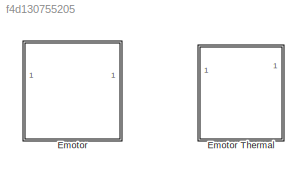
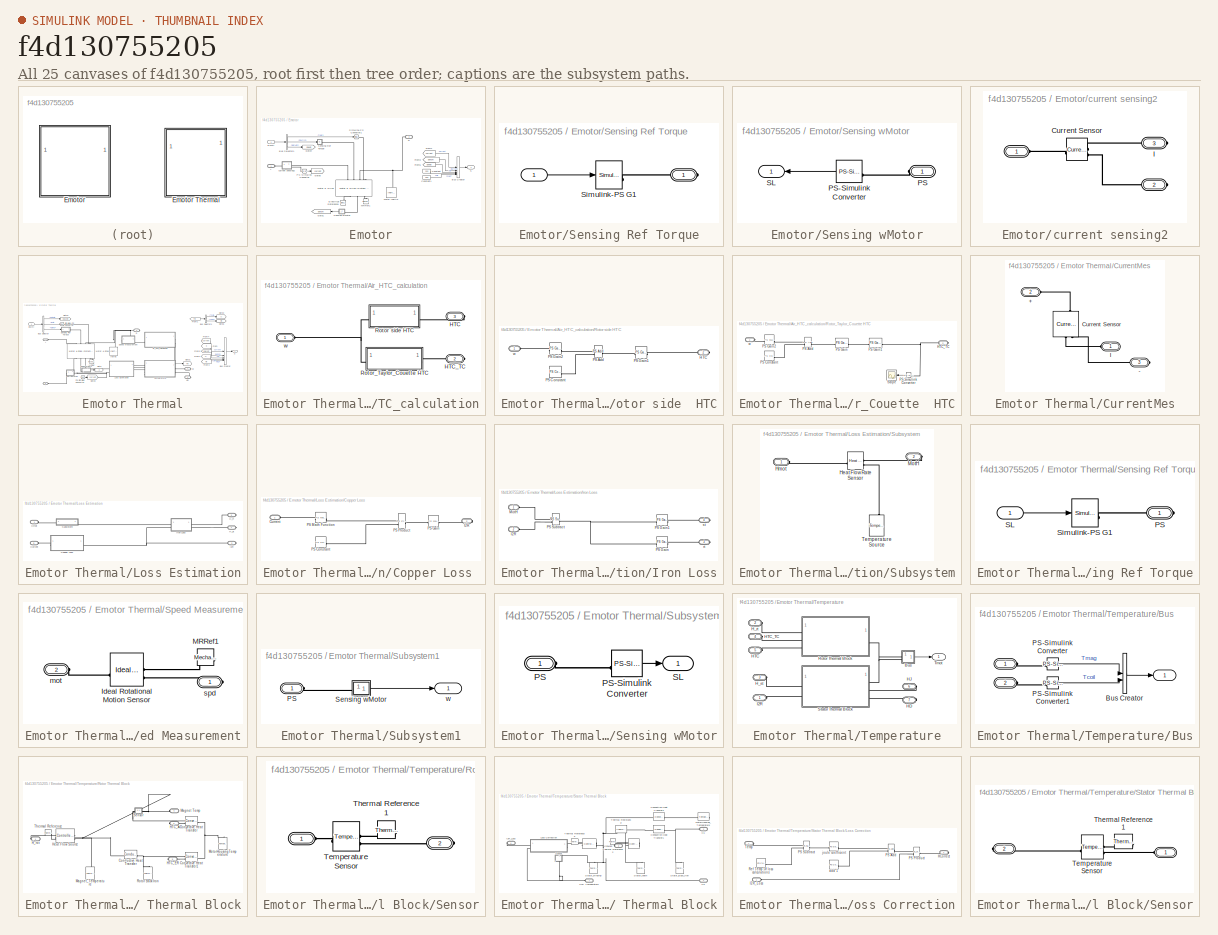
[diagram: thumbnail index - all 25 canvases of the model, root first then tree order]
MODEL slx_f4d130755205
KIND library
CONFIG AbsTol = auto
CONFIG EnableMultiTasking = off
CONFIG FixedStep = auto
CONFIG MaxStep = auto
CONFIG MinStep = auto
CONFIG RelTol = 1e-3
CONFIG SampleTimeConstraint = Unconstrained
CONFIG SolverName = VariableStepAuto
CONFIG StartTime = 0.0
CONFIG StopTime = 10.0
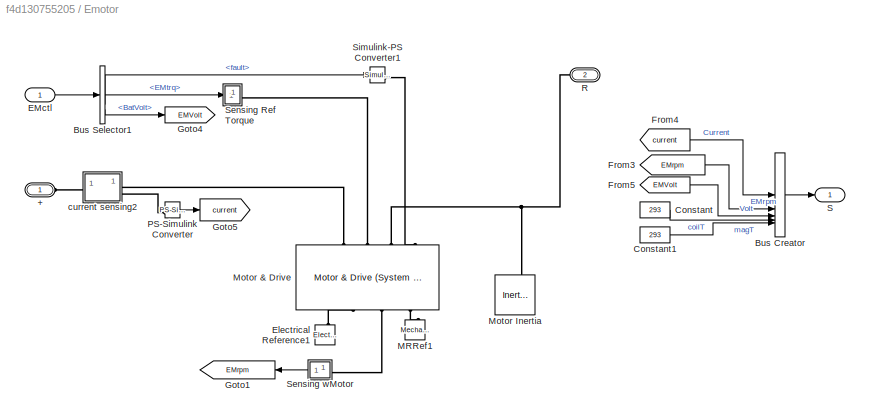
BLOCK [SubSystem] Emotor
  PortSchema = {"entries":[{"content":{"sides":[{"content":{"connectorIds":["LConn1","In1"]},"type":"ConnectorPlacement.EquallySpacedRectSide","uuid":"4c01f4e7-db0d-4a8e-9bf8-0007797f2983"},{"content":{"connectorIds":["RConn1","Out1"],"side":"RIGHT"},"type":"ConnectorPlacement.EquallySpacedRectSide","uuid":"016ff73d-d921-4c23-b0f0-ceb092773eb0"},{"content":{"connectorIds":[],"side":"TOP"},"type":"ConnectorPlacem...<+258ch>
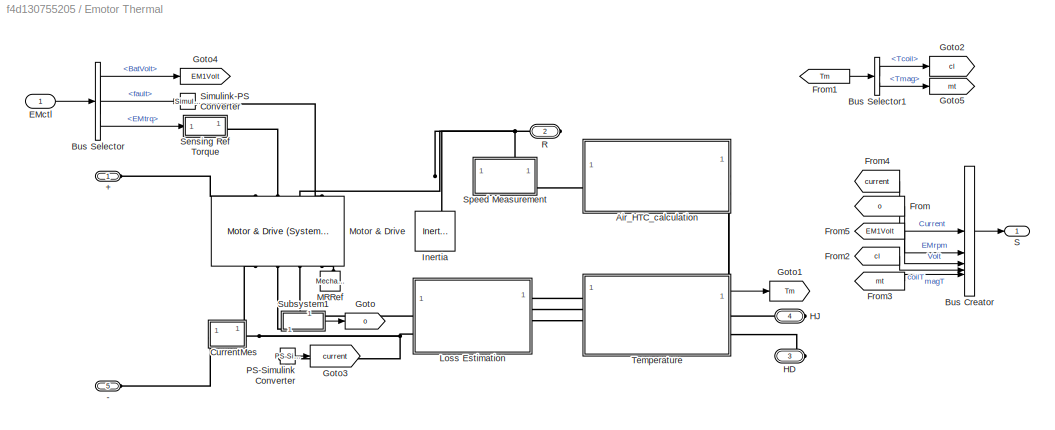
BLOCK [SubSystem] Emotor Thermal
  NameLocation = top
  PortSchema = {"entries":[{"content":{"sides":[{"content":{"connectorIds":["LConn1","LConn2","In1"]},"type":"ConnectorPlacement.EquallySpacedRectSide","uuid":"10df522d-563d-4b08-8533-b994fdc6485c"},{"content":{"connectorIds":["RConn1","Out1"],"side":"RIGHT"},"type":"ConnectorPlacement.EquallySpacedRectSide","uuid":"49c7f672-865f-471b-9e0c-89a8670e12b9"},{"content":{"connectorIds":[],"side":"TOP"},"type":"Connec...<+428ch>
BLOCK [PMIOPort] Emotor Thermal/+
  Side = Left
BLOCK [PMIOPort] Emotor Thermal/-
  Port = 5
  Side = Left
BLOCK [SubSystem] Emotor Thermal/Air_HTC_calculation
  NameLocation = top
  PortSchema = {"entries":[{"content":{"sides":[{"content":{"connectorIds":["LConn1"]},"type":"ConnectorPlacement.EquallySpacedRectSide","uuid":"c3fc49c2-0151-484f-b0d8-f4e4a060bcaf"},{"content":{"connectorIds":[],"side":"RIGHT"},"type":"ConnectorPlacement.EquallySpacedRectSide","uuid":"c73251fe-fcad-4c5f-9d27-fb7ac98c9b31"},{"content":{"connectorIds":[],"side":"TOP"},"type":"ConnectorPlacement.EquallySpacedRect...<+398ch>
BLOCK [PMIOPort] Emotor Thermal/Air_HTC_calculation/HTC
  NameLocation = top
  Port = 3
  Side = Right
BLOCK [PMIOPort] Emotor Thermal/Air_HTC_calculation/HTC_TC
  NameLocation = top
  Port = 2
  Side = Right
BLOCK [SubSystem] Emotor Thermal/Air_HTC_calculation/Rotor side  HTC
BLOCK [PMIOPort] Emotor Thermal/Air_HTC_calculation/Rotor side  HTC/HTC
  NameLocation = top
  Port = 2
  Side = Right
BLOCK [Reference] Emotor Thermal/Air_HTC_calculation/Rotor side  HTC/PS Add  REF=fl_lib/Physical Signals/Functions/PS Add
  SourceBlock = fl_lib/Physical Signals/Functions/PS Add
  SourceType = PS Add
BLOCK [Reference] Emotor Thermal/Air_HTC_calculation/Rotor side  HTC/PS Constant  REF=fl_lib/Physical Signals/Sources/PS Constant
  SourceBlock = fl_lib/Physical Signals/Sources/PS Constant
  SourceType = PS Constant
BLOCK [Reference] Emotor Thermal/Air_HTC_calculation/Rotor side  HTC/PS Gain1  REF=fl_lib/Physical Signals/Functions/PS Gain
  SourceBlock = fl_lib/Physical Signals/Functions/PS Gain
  SourceType = PS Gain
BLOCK [Reference] Emotor Thermal/Air_HTC_calculation/Rotor side  HTC/PS Gain2  REF=fl_lib/Physical Signals/Functions/PS Gain
  SourceBlock = fl_lib/Physical Signals/Functions/PS Gain
  SourceType = PS Gain
BLOCK [PMIOPort] Emotor Thermal/Air_HTC_calculation/Rotor side  HTC/w
  Side = Left
BLOCK [SubSystem] Emotor Thermal/Air_HTC_calculation/Rotor_Taylor_Couette  HTC
BLOCK [PMIOPort] Emotor Thermal/Air_HTC_calculation/Rotor_Taylor_Couette  HTC/HTC_TC
  NameLocation = top
  Port = 2
  Side = Right
BLOCK [Reference] Emotor Thermal/Air_HTC_calculation/Rotor_Taylor_Couette  HTC/PS Add  REF=fl_lib/Physical Signals/Functions/PS Add
  SourceBlock = fl_lib/Physical Signals/Functions/PS Add
  SourceType = PS Add
BLOCK [Reference] Emotor Thermal/Air_HTC_calculation/Rotor_Taylor_Couette  HTC/PS Constant  REF=fl_lib/Physical Signals/Sources/PS Constant
  SourceBlock = fl_lib/Physical Signals/Sources/PS Constant
  SourceType = PS Constant
BLOCK [Reference] Emotor Thermal/Air_HTC_calculation/Rotor_Taylor_Couette  HTC/PS Gain  REF=fl_lib/Physical Signals/Functions/PS Gain
  SourceBlock = fl_lib/Physical Signals/Functions/PS Gain
  SourceType = PS Gain
BLOCK [Reference] Emotor Thermal/Air_HTC_calculation/Rotor_Taylor_Couette  HTC/PS Gain1  REF=fl_lib/Physical Signals/Functions/PS Gain
  SourceBlock = fl_lib/Physical Signals/Functions/PS Gain
  SourceType = PS Gain
BLOCK [Reference] Emotor Thermal/Air_HTC_calculation/Rotor_Taylor_Couette  HTC/PS Gain2  REF=fl_lib/Physical Signals/Functions/PS Gain
  SourceBlock = fl_lib/Physical Signals/Functions/PS Gain
  SourceType = PS Gain
BLOCK [Reference] Emotor Thermal/Air_HTC_calculation/Rotor_Taylor_Couette  HTC/PS-Simulink Converter  REF=nesl_utility/PS-Simulink
Converter
  NameLocation = top
  SourceBlock = nesl_utility/PS-Simulink\nConverter
  SourceType = PS-Simulink\nConverter
BLOCK [Scope] Emotor Thermal/Air_HTC_calculation/Rotor_Taylor_Couette  HTC/Scope
  Floating = off
  NumInputPorts = 1
  ScopeSpecificationString = Simulink.scopes.TimeScopeBlockCfg('CurrentConfiguration', extmgr.ConfigurationSet(extmgr.Configuration('Core','General UI',true),extmgr.Configuration('Core','Source UI',true),extmgr.Configuration('Sources','WiredSimulink',true,'DataLoggingVariableName','ScopeData1'),extmgr.Configuration('Visuals','Time Domain',true,'SerializedDisplays',{struct('MinYLimReal','0.000015','MaxYLimReal','0.000081','YLa...<+1411ch>
BLOCK [PMIOPort] Emotor Thermal/Air_HTC_calculation/Rotor_Taylor_Couette  HTC/w
  Side = Left
BLOCK [PMIOPort] Emotor Thermal/Air_HTC_calculation/w
  Side = Left
BLOCK [BusCreator] Emotor Thermal/Bus Creator
  DisplayOption = bar
  InheritFromInputs = on
  Inputs = 5
BLOCK [BusSelector] Emotor Thermal/Bus Selector
  OutputSignals = BatVolt,fault,EMtrq
BLOCK [BusSelector] Emotor Thermal/Bus Selector1
  OutputSignals = Tcoil,Tmag
BLOCK [SubSystem] Emotor Thermal/CurrentMes
  NameLocation = left
  PortSchema = {"entries":[{"content":{"sides":[{"content":{"connectorIds":["LConn1"]},"type":"ConnectorPlacement.EquallySpacedRectSide","uuid":"aec73178-3b68-40df-935a-7f5359bce9cd"},{"content":{"connectorIds":[],"side":"RIGHT"},"type":"ConnectorPlacement.EquallySpacedRectSide","uuid":"aa898e43-8a60-4280-99e9-69a0b0908b52"},{"content":{"connectorIds":["LConn2"],"side":"TOP"},"type":"ConnectorPlacement.EquallySp...<+397ch>
BLOCK [PMIOPort] Emotor Thermal/CurrentMes/+
  Port = 2
  Side = Left
BLOCK [PMIOPort] Emotor Thermal/CurrentMes/-
  Port = 3
  Side = Right
BLOCK [Reference] Emotor Thermal/CurrentMes/Current Sensor  REF=fl_lib/Electrical/Electrical Sensors/Current Sensor
  NameLocation = left
  SourceBlock = fl_lib/Electrical/Electrical Sensors/Current Sensor
  SourceType = Current Sensor
BLOCK [PMIOPort] Emotor Thermal/CurrentMes/I
  Side = Left
BLOCK [Inport] Emotor Thermal/EMctl
BLOCK [From] Emotor Thermal/From
  GotoTag = o
BLOCK [From] Emotor Thermal/From1
  GotoTag = Tm
BLOCK [From] Emotor Thermal/From2
  GotoTag = cl
  NameLocation = top
BLOCK [From] Emotor Thermal/From3
  GotoTag = mt
BLOCK [From] Emotor Thermal/From4
  GotoTag = current
  NameLocation = left
BLOCK [From] Emotor Thermal/From5
  GotoTag = EM1Volt
BLOCK [Goto] Emotor Thermal/Goto
  GotoTag = o
BLOCK [Goto] Emotor Thermal/Goto1
  GotoTag = Tm
BLOCK [Goto] Emotor Thermal/Goto2
  GotoTag = cl
BLOCK [Goto] Emotor Thermal/Goto3
  GotoTag = current
BLOCK [Goto] Emotor Thermal/Goto4
  GotoTag = EM1Volt
BLOCK [Goto] Emotor Thermal/Goto5
  GotoTag = mt
BLOCK [PMIOPort] Emotor Thermal/HD
  Port = 3
  Side = Right
BLOCK [PMIOPort] Emotor Thermal/HJ
  Port = 4
  Side = Right
BLOCK [Reference] Emotor Thermal/Inertia  REF=fl_lib/Mechanical/Rotational Elements/Inertia
  NameLocation = right
  SourceBlock = fl_lib/Mechanical/Rotational Elements/Inertia
  SourceType = Inertia
BLOCK [SubSystem] Emotor Thermal/Loss Estimation
  NameLocation = top
BLOCK [SubSystem] Emotor Thermal/Loss Estimation/Copper Loss 
BLOCK [PMIOPort] Emotor Thermal/Loss Estimation/Copper Loss /Current
  Side = Left
BLOCK [PMIOPort] Emotor Thermal/Loss Estimation/Copper Loss /I2R
  NameLocation = top
  Port = 2
  Side = Right
BLOCK [Reference] Emotor Thermal/Loss Estimation/Copper Loss /PS Constant  REF=fl_lib/Physical Signals/Sources/PS Constant
  SourceBlock = fl_lib/Physical Signals/Sources/PS Constant
  SourceType = PS Constant
BLOCK [Reference] Emotor Thermal/Loss Estimation/Copper Loss /PS Gain  REF=fl_lib/Physical Signals/Functions/PS Gain
  SourceBlock = fl_lib/Physical Signals/Functions/PS Gain
  SourceType = PS Gain
BLOCK [Reference] Emotor Thermal/Loss Estimation/Copper Loss /PS Math Function  REF=fl_lib/Physical Signals/Functions/PS Math Function
  SourceBlock = fl_lib/Physical Signals/Functions/PS Math Function
  SourceType = PS Math Function
BLOCK [Reference] Emotor Thermal/Loss Estimation/Copper Loss /PS Product  REF=fl_lib/Physical Signals/Functions/PS Product
  SourceBlock = fl_lib/Physical Signals/Functions/PS Product
  SourceType = PS Product
BLOCK [PMIOPort] Emotor Thermal/Loss Estimation/Current
  Port = 5
  Side = Left
BLOCK [PMIOPort] Emotor Thermal/Loss Estimation/H_rt
  Port = 3
  Side = Right
BLOCK [PMIOPort] Emotor Thermal/Loss Estimation/H_st
  Port = 4
  Side = Right
BLOCK [PMIOPort] Emotor Thermal/Loss Estimation/Hmot
  Side = Left
BLOCK [PMIOPort] Emotor Thermal/Loss Estimation/I2R
  NameLocation = top
  Port = 2
  Side = Right
BLOCK [SubSystem] Emotor Thermal/Loss Estimation/Iron Loss
BLOCK [PMIOPort] Emotor Thermal/Loss Estimation/Iron Loss/I2R
  Port = 2
  Side = Left
BLOCK [PMIOPort] Emotor Thermal/Loss Estimation/Iron Loss/MotH
  Side = Left
BLOCK [Reference] Emotor Thermal/Loss Estimation/Iron Loss/PS Gain  REF=fl_lib/Physical Signals/Functions/PS Gain
  SourceBlock = fl_lib/Physical Signals/Functions/PS Gain
  SourceType = PS Gain
BLOCK [Reference] Emotor Thermal/Loss Estimation/Iron Loss/PS Gain1  REF=fl_lib/Physical Signals/Functions/PS Gain
  SourceBlock = fl_lib/Physical Signals/Functions/PS Gain
  SourceType = PS Gain
BLOCK [Reference] Emotor Thermal/Loss Estimation/Iron Loss/PS Subtract  REF=fl_lib/Physical Signals/Functions/PS Subtract
  SourceBlock = fl_lib/Physical Signals/Functions/PS Subtract
  SourceType = PS Subtract
BLOCK [PMIOPort] Emotor Thermal/Loss Estimation/Iron Loss/rt
  NameLocation = top
  Port = 3
  Side = Right
BLOCK [PMIOPort] Emotor Thermal/Loss Estimation/Iron Loss/st
  NameLocation = top
  Port = 4
  Side = Right
BLOCK [SubSystem] Emotor Thermal/Loss Estimation/Subsystem
BLOCK [Reference] Emotor Thermal/Loss Estimation/Subsystem/Heat Flow Rate Sensor  REF=fl_lib/Thermal/Thermal Sensors/Heat Flow Rate
Sensor
  SourceBlock = fl_lib/Thermal/Thermal Sensors/Heat Flow Rate\nSensor
  SourceType = Heat Flow Rate\nSensor
BLOCK [PMIOPort] Emotor Thermal/Loss Estimation/Subsystem/Hmot
  Side = Left
BLOCK [PMIOPort] Emotor Thermal/Loss Estimation/Subsystem/MotH
  NameLocation = top
  Port = 2
  Side = Right
BLOCK [Reference] Emotor Thermal/Loss Estimation/Subsystem/Temperature Source  REF=fl_lib/Thermal/Thermal Sources/Temperature Source
  NameLocation = right
  SourceBlock = fl_lib/Thermal/Thermal Sources/Temperature Source
  SourceType = Temperature Source
BLOCK [Reference] Emotor Thermal/MRRef  REF=fl_lib/Mechanical/Rotational Elements/Mechanical
Rotational Reference
  NameLocation = right
  SourceBlock = fl_lib/Mechanical/Rotational Elements/Mechanical\nRotational Reference
  SourceType = Mechanical\nRotational Reference
BLOCK [Reference] Emotor Thermal/Motor & Drive  REF=ee_lib/Electromechanical/Motor & Drive
(System Level)
  NameLocation = left
  SourceBlock = ee_lib/Electromechanical/Motor & Drive\n(System Level)
  SourceType = Motor & Drive\n(System Level)
BLOCK [Reference] Emotor Thermal/PS-Simulink Converter  REF=nesl_utility/PS-Simulink
Converter
  SourceBlock = nesl_utility/PS-Simulink\nConverter
  SourceType = PS-Simulink\nConverter
BLOCK [PMIOPort] Emotor Thermal/R
  Port = 2
  Side = Right
BLOCK [Outport] Emotor Thermal/S
BLOCK [SubSystem] Emotor Thermal/Sensing Ref Torque
  NameLocation = top
BLOCK [PMIOPort] Emotor Thermal/Sensing Ref Torque/PS
  Side = Right
BLOCK [Inport] Emotor Thermal/Sensing Ref Torque/SL
BLOCK [Reference] Emotor Thermal/Sensing Ref Torque/Simulink-PS G1  REF=nesl_utility/Simulink-PS
Converter
  SourceBlock = nesl_utility/Simulink-PS\nConverter
  SourceType = Simulink-PS\nConverter
BLOCK [Reference] Emotor Thermal/Simulink-PS Converter  REF=nesl_utility/Simulink-PS
Converter
  SourceBlock = nesl_utility/Simulink-PS\nConverter
  SourceType = Simulink-PS\nConverter
BLOCK [SubSystem] Emotor Thermal/Speed Measurement
BLOCK [Reference] Emotor Thermal/Speed Measurement/Ideal Rotational Motion Sensor  REF=fl_lib/Mechanical/Mechanical Sensors/Ideal Rotational
Motion Sensor
  SourceBlock = fl_lib/Mechanical/Mechanical Sensors/Ideal Rotational\nMotion Sensor
  SourceType = Ideal Rotational\nMotion Sensor
BLOCK [Reference] Emotor Thermal/Speed Measurement/MRRef1  REF=fl_lib/Mechanical/Rotational Elements/Mechanical
Rotational Reference
  NameLocation = top
  SourceBlock = fl_lib/Mechanical/Rotational Elements/Mechanical\nRotational Reference
  SourceType = Mechanical\nRotational Reference
BLOCK [PMIOPort] Emotor Thermal/Speed Measurement/mot
  Port = 2
  Side = Left
BLOCK [PMIOPort] Emotor Thermal/Speed Measurement/spd
  Side = Right
BLOCK [SubSystem] Emotor Thermal/Subsystem1
  NameLocation = right
  PortSchema = {"entries":[{"content":{"sides":[{"content":{},"type":"ConnectorPlacement.EquallySpacedRectSide","uuid":"73dca2aa-f399-4eeb-9d48-20c826d2ded4"},{"content":{"side":"RIGHT"},"type":"ConnectorPlacement.EquallySpacedRectSide","uuid":"ff117f44-2f45-4c10-9502-0d11ada2d007"},{"content":{"connectorIds":["LConn1"],"side":"TOP"},"type":"ConnectorPlacement.EquallySpacedRectSide","uuid":"808df778-70a2-4117-a4...<+352ch>
BLOCK [PMIOPort] Emotor Thermal/Subsystem1/PS
  Side = Left
BLOCK [SubSystem] Emotor Thermal/Subsystem1/Sensing wMotor
  NameLocation = top
BLOCK [PMIOPort] Emotor Thermal/Subsystem1/Sensing wMotor/PS
  NameLocation = top
  Side = Left
BLOCK [Reference] Emotor Thermal/Subsystem1/Sensing wMotor/PS-Simulink Converter  REF=nesl_utility/PS-Simulink
Converter
  SourceBlock = nesl_utility/PS-Simulink\nConverter
  SourceType = PS-Simulink\nConverter
BLOCK [Outport] Emotor Thermal/Subsystem1/Sensing wMotor/SL
  NameLocation = top
  VectorParamsAs1DForOutWhenUnconnected = off
BLOCK [Outport] Emotor Thermal/Subsystem1/w
  NameLocation = top
  VectorParamsAs1DForOutWhenUnconnected = off
BLOCK [SubSystem] Emotor Thermal/Temperature
  PortSchema = {"entries":[{"content":{"sides":[{"content":{"connectorIds":["LConn1","LConn2","LConn3"]},"type":"ConnectorPlacement.EquallySpacedRectSide","uuid":"fee72484-960d-4cd4-9296-e38678962aa1"},{"content":{"connectorIds":["Out1","RConn1","RConn2"],"side":"RIGHT"},"type":"ConnectorPlacement.EquallySpacedRectSide","uuid":"5fc115b4-63fd-47d3-871d-1c82ac52ac43"},{"content":{"connectorIds":["LConn4","LConn5"]...<+440ch>
BLOCK [SubSystem] Emotor Thermal/Temperature/Bus
BLOCK [PMIOPort] Emotor Thermal/Temperature/Bus/ 
  Side = Left
BLOCK [PMIOPort] Emotor Thermal/Temperature/Bus/  
  Port = 2
  Side = Left
BLOCK [Outport] Emotor Thermal/Temperature/Bus/   
BLOCK [BusCreator] Emotor Thermal/Temperature/Bus/Bus Creator
  DisplayOption = bar
  InheritFromInputs = on
  Inputs = 2
BLOCK [Reference] Emotor Thermal/Temperature/Bus/PS-Simulink Converter  REF=nesl_utility/PS-Simulink
Converter
  SourceBlock = nesl_utility/PS-Simulink\nConverter
  SourceType = PS-Simulink\nConverter
BLOCK [Reference] Emotor Thermal/Temperature/Bus/PS-Simulink Converter1  REF=nesl_utility/PS-Simulink
Converter
  SourceBlock = nesl_utility/PS-Simulink\nConverter
  SourceType = PS-Simulink\nConverter
BLOCK [PMIOPort] Emotor Thermal/Temperature/HD
  NameLocation = top
  Port = 7
  Side = Right
BLOCK [PMIOPort] Emotor Thermal/Temperature/HJ
  NameLocation = top
  Port = 6
  Side = Right
BLOCK [PMIOPort] Emotor Thermal/Temperature/HTC
  Port = 5
  Side = Left
BLOCK [PMIOPort] Emotor Thermal/Temperature/HTC_TC
  Port = 4
  Side = Left
BLOCK [PMIOPort] Emotor Thermal/Temperature/H_rt
  Port = 2
  Side = Left
BLOCK [PMIOPort] Emotor Thermal/Temperature/H_st
  Port = 3
  Side = Left
BLOCK [PMIOPort] Emotor Thermal/Temperature/I2R
  Side = Left
BLOCK [SubSystem] Emotor Thermal/Temperature/Rotor Thermal Block
  NameLocation = top
BLOCK [Reference] Emotor Thermal/Temperature/Rotor Thermal Block/Conductive Heat Transfer  REF=fl_lib/Thermal/Thermal Elements/Conductive Heat
Transfer
  SourceBlock = fl_lib/Thermal/Thermal Elements/Conductive Heat\nTransfer
  SourceType = Conductive Heat\nTransfer
BLOCK [Reference] Emotor Thermal/Temperature/Rotor Thermal Block/Convective Heat Transfer  REF=fl_lib/Thermal/Thermal Elements/Convective Heat
Transfer
  SourceBlock = fl_lib/Thermal/Thermal Elements/Convective Heat\nTransfer
  SourceType = Convective Heat\nTransfer
BLOCK [Reference] Emotor Thermal/Temperature/Rotor Thermal Block/Convective Heat Transfer1  REF=fl_lib/Thermal/Thermal Elements/Convective Heat
Transfer
  SourceBlock = fl_lib/Thermal/Thermal Elements/Convective Heat\nTransfer
  SourceType = Convective Heat\nTransfer
BLOCK [PMIOPort] Emotor Thermal/Temperature/Rotor Thermal Block/HTC_AG
  Port = 2
  Side = Right
BLOCK [PMIOPort] Emotor Thermal/Temperature/Rotor Thermal Block/HTC_ER
  Port = 3
  Side = Right
BLOCK [PMIOPort] Emotor Thermal/Temperature/Rotor Thermal Block/H_rot
  NameLocation = top
  Side = Right
BLOCK [Reference] Emotor Thermal/Temperature/Rotor Thermal Block/Heat Flow Source  REF=fl_lib/Thermal/Thermal Sources/Controlled Heat Flow
Rate Source
  NameLocation = top
  SourceBlock = fl_lib/Thermal/Thermal Sources/Controlled Heat Flow\nRate Source
  SourceType = Controlled Heat Flow\nRate Source
BLOCK [PMIOPort] Emotor Thermal/Temperature/Rotor Thermal Block/Magnet Temp
  NameLocation = top
  Port = 4
  Side = Left
BLOCK [Reference] Emotor Thermal/Temperature/Rotor Thermal Block/Magnet_Temperature   REF=fl_lib/Thermal/Thermal Elements/Thermal Mass
  NameLocation = left
  SourceBlock = fl_lib/Thermal/Thermal Elements/Thermal Mass
  SourceType = Thermal Mass
BLOCK [Reference] Emotor Thermal/Temperature/Rotor Thermal Block/MotorHousingTemperature  REF=fl_lib/Thermal/Thermal Sources/Temperature Source
  NameLocation = right
  SourceBlock = fl_lib/Thermal/Thermal Sources/Temperature Source
  SourceType = Temperature Source
BLOCK [Reference] Emotor Thermal/Temperature/Rotor Thermal Block/Rotor Back Iron  REF=fl_lib/Thermal/Thermal Elements/Thermal Mass
  NameLocation = right
  SourceBlock = fl_lib/Thermal/Thermal Elements/Thermal Mass
  SourceType = Thermal Mass
BLOCK [SubSystem] Emotor Thermal/Temperature/Rotor Thermal Block/Sensor
  NameLocation = top
BLOCK [PMIOPort] Emotor Thermal/Temperature/Rotor Thermal Block/Sensor/ 
  Side = Left
BLOCK [PMIOPort] Emotor Thermal/Temperature/Rotor Thermal Block/Sensor/  
  NameLocation = top
  Port = 2
  Side = Right
BLOCK [Reference] Emotor Thermal/Temperature/Rotor Thermal Block/Sensor/Temperature Sensor  REF=fl_lib/Thermal/Thermal Sensors/Temperature Sensor
  SourceBlock = fl_lib/Thermal/Thermal Sensors/Temperature Sensor
  SourceType = Temperature Sensor
BLOCK [Reference] Emotor Thermal/Temperature/Rotor Thermal Block/Sensor/Thermal Reference1  REF=fl_lib/Thermal/Thermal Elements/Thermal Reference
  NameLocation = top
  SourceBlock = fl_lib/Thermal/Thermal Elements/Thermal Reference
  SourceType = Thermal Reference
BLOCK [Reference] Emotor Thermal/Temperature/Rotor Thermal Block/Thermal Reference  REF=fl_lib/Thermal/Thermal Elements/Thermal Reference
  SourceBlock = fl_lib/Thermal/Thermal Elements/Thermal Reference
  SourceType = Thermal Reference
BLOCK [SubSystem] Emotor Thermal/Temperature/Stator Thermal Block
BLOCK [Reference] Emotor Thermal/Temperature/Stator Thermal Block/   REF=fl_lib/Thermal/Thermal Sources/Controlled Heat Flow
Rate Source
  SourceBlock = fl_lib/Thermal/Thermal Sources/Controlled Heat Flow\nRate Source
  SourceType = Controlled Heat Flow\nRate Source
BLOCK [Reference] Emotor Thermal/Temperature/Stator Thermal Block/    REF=fl_lib/Thermal/Thermal Sources/Controlled Heat Flow
Rate Source
  SourceBlock = fl_lib/Thermal/Thermal Sources/Controlled Heat Flow\nRate Source
  SourceType = Controlled Heat Flow\nRate Source
BLOCK [PMIOPort] Emotor Thermal/Temperature/Stator Thermal Block/Coil Temperature
  Side = Left
BLOCK [Reference] Emotor Thermal/Temperature/Stator Thermal Block/Conductive Heat Transfer1  REF=fl_lib/Thermal/Thermal Elements/Conductive Heat
Transfer
  SourceBlock = fl_lib/Thermal/Thermal Elements/Conductive Heat\nTransfer
  SourceType = Conductive Heat\nTransfer
BLOCK [Reference] Emotor Thermal/Temperature/Stator Thermal Block/Convective Heat Transfer2  REF=fl_lib/Thermal/Thermal Elements/Convective Heat
Transfer
  SourceBlock = fl_lib/Thermal/Thermal Elements/Convective Heat\nTransfer
  SourceType = Convective Heat\nTransfer
BLOCK [PMIOPort] Emotor Thermal/Temperature/Stator Thermal Block/H1
  NameLocation = top
  Port = 2
  Side = Left
BLOCK [PMIOPort] Emotor Thermal/Temperature/Stator Thermal Block/H2
  NameLocation = top
  Port = 5
  Side = Left
BLOCK [PMIOPort] Emotor Thermal/Temperature/Stator Thermal Block/I2R_Loss
  Port = 4
  Side = Right
BLOCK [PMIOPort] Emotor Thermal/Temperature/Stator Thermal Block/IronLoss
  Port = 3
  Side = Right
BLOCK [SubSystem] Emotor Thermal/Temperature/Stator Thermal Block/Loss Correction
  NameLocation = top
BLOCK [PMIOPort] Emotor Thermal/Temperature/Stator Thermal Block/Loss Correction/HCorrect
  NameLocation = top
  Port = 3
  Side = Right
BLOCK [PMIOPort] Emotor Thermal/Temperature/Stator Thermal Block/Loss Correction/I2R_Loss
  Side = Left
BLOCK [Reference] Emotor Thermal/Temperature/Stator Thermal Block/Loss Correction/PS Add  REF=fl_lib/Physical Signals/Functions/PS Add
  SourceBlock = fl_lib/Physical Signals/Functions/PS Add
  SourceType = PS Add
BLOCK [Reference] Emotor Thermal/Temperature/Stator Thermal Block/Loss Correction/PS Product  REF=fl_lib/Physical Signals/Functions/PS Product
  SourceBlock = fl_lib/Physical Signals/Functions/PS Product
  SourceType = PS Product
BLOCK [Reference] Emotor Thermal/Temperature/Stator Thermal Block/Loss Correction/PS Subtract  REF=fl_lib/Physical Signals/Functions/PS Subtract
  SourceBlock = fl_lib/Physical Signals/Functions/PS Subtract
  SourceType = PS Subtract
BLOCK [Reference] Emotor Thermal/Temperature/Stator Thermal Block/Loss Correction/Ref Temp Of loss calculations  REF=fl_lib/Physical Signals/Sources/PS Constant
  NameLocation = left
  SourceBlock = fl_lib/Physical Signals/Sources/PS Constant
  SourceType = PS Constant
BLOCK [PMIOPort] Emotor Thermal/Temperature/Stator Thermal Block/Loss Correction/Temp
  Port = 2
  Side = Left
BLOCK [Reference] Emotor Thermal/Temperature/Stator Thermal Block/Loss Correction/add 1  REF=fl_lib/Physical Signals/Sources/PS Constant
  SourceBlock = fl_lib/Physical Signals/Sources/PS Constant
  SourceType = PS Constant
BLOCK [Reference] Emotor Thermal/Temperature/Stator Thermal Block/Loss Correction/joule coefficient  REF=fl_lib/Physical Signals/Functions/PS Gain
  SourceBlock = fl_lib/Physical Signals/Functions/PS Gain
  SourceType = PS Gain
BLOCK [Reference] Emotor Thermal/Temperature/Stator Thermal Block/MotorHousing_Temperature  REF=fl_lib/Thermal/Thermal Sources/Temperature Source
  NameLocation = top
  SourceBlock = fl_lib/Thermal/Thermal Sources/Temperature Source
  SourceType = Temperature Source
BLOCK [SubSystem] Emotor Thermal/Temperature/Stator Thermal Block/Sensor
  NameLocation = left
  PortSchema = {"entries":[{"content":{"sides":[{"content":{"connectorIds":["LConn1"]},"type":"ConnectorPlacement.EquallySpacedRectSide","uuid":"2a9c4c46-5e98-4ad3-ac1b-1643fab919e9"},{"content":{"connectorIds":[],"side":"RIGHT"},"type":"ConnectorPlacement.EquallySpacedRectSide","uuid":"818e06c0-624d-478e-bbcc-fcb04ee6018d"},{"content":{"connectorIds":[],"side":"TOP"},"type":"ConnectorPlacement.EquallySpacedRect...<+389ch>
BLOCK [PMIOPort] Emotor Thermal/Temperature/Stator Thermal Block/Sensor/ 
  Port = 2
  Side = Right
BLOCK [PMIOPort] Emotor Thermal/Temperature/Stator Thermal Block/Sensor/  
  NameLocation = top
  Side = Left
BLOCK [Reference] Emotor Thermal/Temperature/Stator Thermal Block/Sensor/Temperature Sensor  REF=fl_lib/Thermal/Thermal Sensors/Temperature Sensor
  SourceBlock = fl_lib/Thermal/Thermal Sensors/Temperature Sensor
  SourceType = Temperature Sensor
BLOCK [Reference] Emotor Thermal/Temperature/Stator Thermal Block/Sensor/Thermal Reference1  REF=fl_lib/Thermal/Thermal Elements/Thermal Reference
  NameLocation = top
  SourceBlock = fl_lib/Thermal/Thermal Elements/Thermal Reference
  SourceType = Thermal Reference
BLOCK [Reference] Emotor Thermal/Temperature/Stator Thermal Block/Stator_Back_Iron  REF=fl_lib/Thermal/Thermal Elements/Thermal Mass
  NameLocation = right
  SourceBlock = fl_lib/Thermal/Thermal Elements/Thermal Mass
  SourceType = Thermal Mass
BLOCK [Reference] Emotor Thermal/Temperature/Stator Thermal Block/Stator_teeth  REF=fl_lib/Thermal/Thermal Elements/Thermal Mass
  NameLocation = left
  SourceBlock = fl_lib/Thermal/Thermal Elements/Thermal Mass
  SourceType = Thermal Mass
BLOCK [Reference] Emotor Thermal/Temperature/Stator Thermal Block/Stator_winding  REF=fl_lib/Thermal/Thermal Elements/Thermal Mass
  NameLocation = left
  SourceBlock = fl_lib/Thermal/Thermal Elements/Thermal Mass
  SourceType = Thermal Mass
BLOCK [Reference] Emotor Thermal/Temperature/Stator Thermal Block/Thermal Reference2  REF=fl_lib/Thermal/Thermal Elements/Thermal Reference
  SourceBlock = fl_lib/Thermal/Thermal Elements/Thermal Reference
  SourceType = Thermal Reference
BLOCK [Reference] Emotor Thermal/Temperature/Stator Thermal Block/Thermal Reference3  REF=fl_lib/Thermal/Thermal Elements/Thermal Reference
  SourceBlock = fl_lib/Thermal/Thermal Elements/Thermal Reference
  SourceType = Thermal Reference
BLOCK [Reference] Emotor Thermal/Temperature/Stator Thermal Block/Thermal Resistance  REF=fl_lib/Thermal/Thermal Elements/Thermal Resistance
  NameLocation = top
  SourceBlock = fl_lib/Thermal/Thermal Elements/Thermal Resistance
  SourceType = Thermal Resistance
BLOCK [Outport] Emotor Thermal/Temperature/Tmot
  NameLocation = top
BLOCK [PMIOPort] Emotor/+
  Side = Left
BLOCK [BusCreator] Emotor/Bus Creator
  DisplayOption = bar
  InheritFromInputs = on
  Inputs = 5
BLOCK [BusSelector] Emotor/Bus Selector1
  OutputSignals = fault,EMtrq,BatVolt
BLOCK [Constant] Emotor/Constant
  Value = 293
BLOCK [Constant] Emotor/Constant1
  Value = 293
BLOCK [Inport] Emotor/EMctl
BLOCK [Reference] Emotor/Electrical Reference1  REF=fl_lib/Electrical/Electrical Elements/Electrical Reference
  NameLocation = left
  SourceBlock = fl_lib/Electrical/Electrical Elements/Electrical Reference
  SourceType = Electrical Reference
BLOCK [From] Emotor/From3
  GotoTag = EMrpm
BLOCK [From] Emotor/From4
  GotoTag = current
BLOCK [From] Emotor/From5
  GotoTag = EMVolt
BLOCK [Goto] Emotor/Goto1
  GotoTag = EMrpm
BLOCK [Goto] Emotor/Goto4
  GotoTag = EMVolt
BLOCK [Goto] Emotor/Goto5
  GotoTag = current
BLOCK [Reference] Emotor/MRRef1  REF=fl_lib/Mechanical/Rotational Elements/Mechanical
Rotational Reference
  NameLocation = right
  SourceBlock = fl_lib/Mechanical/Rotational Elements/Mechanical\nRotational Reference
  SourceType = Mechanical\nRotational Reference
BLOCK [Reference] Emotor/Motor & Drive  REF=ee_lib/Electromechanical/Motor & Drive
(System Level)
  NameLocation = left
  SourceBlock = ee_lib/Electromechanical/Motor & Drive\n(System Level)
  SourceType = Motor & Drive\n(System Level)
BLOCK [Reference] Emotor/Motor Inertia  REF=fl_lib/Mechanical/Rotational Elements/Inertia
  SourceBlock = fl_lib/Mechanical/Rotational Elements/Inertia
  SourceType = Inertia
BLOCK [Reference] Emotor/PS-Simulink Converter  REF=nesl_utility/PS-Simulink
Converter
  SourceBlock = nesl_utility/PS-Simulink\nConverter
  SourceType = PS-Simulink\nConverter
BLOCK [PMIOPort] Emotor/R  
  Port = 2
  Side = Right
BLOCK [Outport] Emotor/S
BLOCK [SubSystem] Emotor/Sensing Ref Torque
  NameLocation = top
BLOCK [Inport] Emotor/Sensing Ref Torque/ 
BLOCK [PMIOPort] Emotor/Sensing Ref Torque/  
  Side = Right
BLOCK [Reference] Emotor/Sensing Ref Torque/Simulink-PS G1  REF=nesl_utility/Simulink-PS
Converter
  SourceBlock = nesl_utility/Simulink-PS\nConverter
  SourceType = Simulink-PS\nConverter
BLOCK [SubSystem] Emotor/Sensing wMotor
BLOCK [PMIOPort] Emotor/Sensing wMotor/PS
  Side = Left
BLOCK [Reference] Emotor/Sensing wMotor/PS-Simulink Converter  REF=nesl_utility/PS-Simulink
Converter
  NameLocation = top
  SourceBlock = nesl_utility/PS-Simulink\nConverter
  SourceType = PS-Simulink\nConverter
BLOCK [Outport] Emotor/Sensing wMotor/SL
  VectorParamsAs1DForOutWhenUnconnected = off
BLOCK [Reference] Emotor/Simulink-PS Converter1  REF=nesl_utility/Simulink-PS
Converter
  SourceBlock = nesl_utility/Simulink-PS\nConverter
  SourceType = Simulink-PS\nConverter
BLOCK [SubSystem] Emotor/current sensing2
  NameLocation = top
BLOCK [PMIOPort] Emotor/current sensing2/ 
  Side = Left
BLOCK [PMIOPort] Emotor/current sensing2/  
  Port = 2
  Side = Right
BLOCK [PMIOPort] Emotor/current sensing2/  I
  Port = 3
  Side = Right
BLOCK [Reference] Emotor/current sensing2/Current Sensor  REF=fl_lib/Electrical/Electrical Sensors/Current Sensor
  SourceBlock = fl_lib/Electrical/Electrical Sensors/Current Sensor
  SourceType = Current Sensor
LINE Emotor Thermal/Air_HTC_calculation/Rotor_Taylor_Couette  HTC/PS-Simulink Converter:1 -> Emotor Thermal/Air_HTC_calculation/Rotor_Taylor_Couette  HTC/Scope:1
LINE Emotor Thermal/Bus Creator:1 -> Emotor Thermal/S:1
LINE Emotor Thermal/Bus Selector1:1 -> Emotor Thermal/Goto2:1
LINE Emotor Thermal/Bus Selector1:2 -> Emotor Thermal/Goto5:1
LINE Emotor Thermal/Bus Selector:1 -> Emotor Thermal/Goto4:1
LINE Emotor Thermal/Bus Selector:2 -> Emotor Thermal/Simulink-PS Converter:1
LINE Emotor Thermal/Bus Selector:3 -> Emotor Thermal/Sensing Ref Torque:1
LINE Emotor Thermal/EMctl:1 -> Emotor Thermal/Bus Selector:1
LINE Emotor Thermal/From1:1 -> Emotor Thermal/Bus Selector1:1
LINE Emotor Thermal/From2:1 -> Emotor Thermal/Bus Creator:4
LINE Emotor Thermal/From3:1 -> Emotor Thermal/Bus Creator:5
LINE Emotor Thermal/From4:1 -> Emotor Thermal/Bus Creator:1
LINE Emotor Thermal/From5:1 -> Emotor Thermal/Bus Creator:3
LINE Emotor Thermal/From:1 -> Emotor Thermal/Bus Creator:2
LINE Emotor Thermal/PS-Simulink Converter:1 -> Emotor Thermal/Goto3:1
LINE Emotor Thermal/Sensing Ref Torque/SL:1 -> Emotor Thermal/Sensing Ref Torque/Simulink-PS G1:1
LINE Emotor Thermal/Subsystem1/Sensing wMotor/PS-Simulink Converter:1 -> Emotor Thermal/Subsystem1/Sensing wMotor/SL:1
LINE Emotor Thermal/Subsystem1/Sensing wMotor:1 -> Emotor Thermal/Subsystem1/w:1
LINE Emotor Thermal/Subsystem1:1 -> Emotor Thermal/Goto:1
LINE Emotor Thermal/Temperature/Bus/Bus Creator:1 -> Emotor Thermal/Temperature/Bus/   :1
LINE Emotor Thermal/Temperature/Bus/PS-Simulink Converter1:1 -> Emotor Thermal/Temperature/Bus/Bus Creator:2
LINE Emotor Thermal/Temperature/Bus/PS-Simulink Converter:1 -> Emotor Thermal/Temperature/Bus/Bus Creator:1
LINE Emotor Thermal/Temperature/Bus:1 -> Emotor Thermal/Temperature/Tmot:1
LINE Emotor Thermal/Temperature:1 -> Emotor Thermal/Goto1:1
LINE Emotor/Bus Creator:1 -> Emotor/S:1
LINE Emotor/Bus Selector1:1 -> Emotor/Simulink-PS Converter1:1
LINE Emotor/Bus Selector1:2 -> Emotor/Sensing Ref Torque:1
LINE Emotor/Bus Selector1:3 -> Emotor/Goto4:1
LINE Emotor/Constant1:1 -> Emotor/Bus Creator:5
LINE Emotor/Constant:1 -> Emotor/Bus Creator:4
LINE Emotor/EMctl:1 -> Emotor/Bus Selector1:1
LINE Emotor/From3:1 -> Emotor/Bus Creator:2
LINE Emotor/From4:1 -> Emotor/Bus Creator:1
LINE Emotor/From5:1 -> Emotor/Bus Creator:3
LINE Emotor/PS-Simulink Converter:1 -> Emotor/Goto5:1
LINE Emotor/Sensing Ref Torque/ :1 -> Emotor/Sensing Ref Torque/Simulink-PS G1:1
LINE Emotor/Sensing wMotor/PS-Simulink Converter:1 -> Emotor/Sensing wMotor/SL:1
LINE Emotor/Sensing wMotor:1 -> Emotor/Goto1:1
PLINE Emotor Thermal/+:RConn1 -- Emotor Thermal/Motor & Drive:LConn1
PLINE Emotor Thermal/-:RConn1 -- Emotor Thermal/CurrentMes:RConn1
PLINE Emotor Thermal/Air_HTC_calculation/HTC:RConn1 -- Emotor Thermal/Air_HTC_calculation/Rotor side  HTC:RConn1
PLINE Emotor Thermal/Air_HTC_calculation/HTC_TC:RConn1 -- Emotor Thermal/Air_HTC_calculation/Rotor_Taylor_Couette  HTC:RConn1
PLINE Emotor Thermal/Air_HTC_calculation/Rotor side  HTC/HTC:RConn1 -- Emotor Thermal/Air_HTC_calculation/Rotor side  HTC/PS Gain1:RConn1
PLINE Emotor Thermal/Air_HTC_calculation/Rotor side  HTC/PS Add:LConn1 -- Emotor Thermal/Air_HTC_calculation/Rotor side  HTC/PS Gain2:RConn1
PLINE Emotor Thermal/Air_HTC_calculation/Rotor side  HTC/PS Add:LConn2 -- Emotor Thermal/Air_HTC_calculation/Rotor side  HTC/PS Constant:RConn1
PLINE Emotor Thermal/Air_HTC_calculation/Rotor side  HTC/PS Add:RConn1 -- Emotor Thermal/Air_HTC_calculation/Rotor side  HTC/PS Gain1:LConn1
PLINE Emotor Thermal/Air_HTC_calculation/Rotor side  HTC/PS Gain2:LConn1 -- Emotor Thermal/Air_HTC_calculation/Rotor side  HTC/w:RConn1
PNET net1: Emotor Thermal/Air_HTC_calculation/Rotor side  HTC:LConn1 -- Emotor Thermal/Air_HTC_calculation/Rotor_Taylor_Couette  HTC:LConn1 -- Emotor Thermal/Air_HTC_calculation/w:RConn1
PNET net2: Emotor Thermal/Air_HTC_calculation/Rotor_Taylor_Couette  HTC/HTC_TC:RConn1 -- Emotor Thermal/Air_HTC_calculation/Rotor_Taylor_Couette  HTC/PS Gain1:RConn1 -- Emotor Thermal/Air_HTC_calculation/Rotor_Taylor_Couette  HTC/PS-Simulink Converter:LConn1
PLINE Emotor Thermal/Air_HTC_calculation/Rotor_Taylor_Couette  HTC/PS Add:LConn1 -- Emotor Thermal/Air_HTC_calculation/Rotor_Taylor_Couette  HTC/PS Gain2:RConn1
PLINE Emotor Thermal/Air_HTC_calculation/Rotor_Taylor_Couette  HTC/PS Add:LConn2 -- Emotor Thermal/Air_HTC_calculation/Rotor_Taylor_Couette  HTC/PS Constant:RConn1
PLINE Emotor Thermal/Air_HTC_calculation/Rotor_Taylor_Couette  HTC/PS Add:RConn1 -- Emotor Thermal/Air_HTC_calculation/Rotor_Taylor_Couette  HTC/PS Gain:LConn1
PLINE Emotor Thermal/Air_HTC_calculation/Rotor_Taylor_Couette  HTC/PS Gain1:LConn1 -- Emotor Thermal/Air_HTC_calculation/Rotor_Taylor_Couette  HTC/PS Gain:RConn1
PLINE Emotor Thermal/Air_HTC_calculation/Rotor_Taylor_Couette  HTC/PS Gain2:LConn1 -- Emotor Thermal/Air_HTC_calculation/Rotor_Taylor_Couette  HTC/w:RConn1
PLINE Emotor Thermal/Air_HTC_calculation:LConn1 -- Emotor Thermal/Speed Measurement:RConn1
PLINE Emotor Thermal/Air_HTC_calculation:RConn1 -- Emotor Thermal/Temperature:LConn4
PLINE Emotor Thermal/Air_HTC_calculation:RConn2 -- Emotor Thermal/Temperature:LConn5
PLINE Emotor Thermal/CurrentMes/+:RConn1 -- Emotor Thermal/CurrentMes/Current Sensor:LConn1
PLINE Emotor Thermal/CurrentMes/-:RConn1 -- Emotor Thermal/CurrentMes/Current Sensor:RConn2
PLINE Emotor Thermal/CurrentMes/Current Sensor:RConn1 -- Emotor Thermal/CurrentMes/I:RConn1
PNET net3: Emotor Thermal/CurrentMes:LConn1 -- Emotor Thermal/Loss Estimation:LConn2 -- Emotor Thermal/PS-Simulink Converter:LConn1
PLINE Emotor Thermal/CurrentMes:LConn2 -- Emotor Thermal/Motor & Drive:RConn1
PLINE Emotor Thermal/HD:RConn1 -- Emotor Thermal/Temperature:RConn2
PLINE Emotor Thermal/HJ:RConn1 -- Emotor Thermal/Temperature:RConn1
PNET net4: Emotor Thermal/Inertia:LConn1 -- Emotor Thermal/Motor & Drive:LConn3 -- Emotor Thermal/R:RConn1 -- Emotor Thermal/Speed Measurement:LConn1
PLINE Emotor Thermal/Loss Estimation/Copper Loss /Current:RConn1 -- Emotor Thermal/Loss Estimation/Copper Loss /PS Math Function:LConn1
PLINE Emotor Thermal/Loss Estimation/Copper Loss /I2R:RConn1 -- Emotor Thermal/Loss Estimation/Copper Loss /PS Gain:RConn1
PLINE Emotor Thermal/Loss Estimation/Copper Loss /PS Constant:RConn1 -- Emotor Thermal/Loss Estimation/Copper Loss /PS Product:LConn2
PLINE Emotor Thermal/Loss Estimation/Copper Loss /PS Gain:LConn1 -- Emotor Thermal/Loss Estimation/Copper Loss /PS Product:RConn1
PLINE Emotor Thermal/Loss Estimation/Copper Loss /PS Math Function:RConn1 -- Emotor Thermal/Loss Estimation/Copper Loss /PS Product:LConn1
PLINE Emotor Thermal/Loss Estimation/Copper Loss :LConn1 -- Emotor Thermal/Loss Estimation/Current:RConn1
PNET net5: Emotor Thermal/Loss Estimation/Copper Loss :RConn1 -- Emotor Thermal/Loss Estimation/I2R:RConn1 -- Emotor Thermal/Loss Estimation/Iron Loss:LConn2
PLINE Emotor Thermal/Loss Estimation/H_rt:RConn1 -- Emotor Thermal/Loss Estimation/Iron Loss:RConn1
PLINE Emotor Thermal/Loss Estimation/H_st:RConn1 -- Emotor Thermal/Loss Estimation/Iron Loss:RConn2
PLINE Emotor Thermal/Loss Estimation/Hmot:RConn1 -- Emotor Thermal/Loss Estimation/Subsystem:LConn1
PLINE Emotor Thermal/Loss Estimation/Iron Loss/I2R:RConn1 -- Emotor Thermal/Loss Estimation/Iron Loss/PS Subtract:LConn2
PLINE Emotor Thermal/Loss Estimation/Iron Loss/MotH:RConn1 -- Emotor Thermal/Loss Estimation/Iron Loss/PS Subtract:LConn1
PNET net6: Emotor Thermal/Loss Estimation/Iron Loss/PS Gain1:LConn1 -- Emotor Thermal/Loss Estimation/Iron Loss/PS Gain:LConn1 -- Emotor Thermal/Loss Estimation/Iron Loss/PS Subtract:RConn1
PLINE Emotor Thermal/Loss Estimation/Iron Loss/PS Gain1:RConn1 -- Emotor Thermal/Loss Estimation/Iron Loss/st:RConn1
PLINE Emotor Thermal/Loss Estimation/Iron Loss/PS Gain:RConn1 -- Emotor Thermal/Loss Estimation/Iron Loss/rt:RConn1
PLINE Emotor Thermal/Loss Estimation/Iron Loss:LConn1 -- Emotor Thermal/Loss Estimation/Subsystem:RConn1
PLINE Emotor Thermal/Loss Estimation/Subsystem/Heat Flow Rate Sensor:LConn1 -- Emotor Thermal/Loss Estimation/Subsystem/Hmot:RConn1
PLINE Emotor Thermal/Loss Estimation/Subsystem/Heat Flow Rate Sensor:RConn1 -- Emotor Thermal/Loss Estimation/Subsystem/MotH:RConn1
PLINE Emotor Thermal/Loss Estimation/Subsystem/Heat Flow Rate Sensor:RConn2 -- Emotor Thermal/Loss Estimation/Subsystem/Temperature Source:LConn1
PLINE Emotor Thermal/Loss Estimation:LConn1 -- Emotor Thermal/Motor & Drive:RConn3
PLINE Emotor Thermal/Loss Estimation:RConn1 -- Emotor Thermal/Temperature:LConn1
PLINE Emotor Thermal/Loss Estimation:RConn2 -- Emotor Thermal/Temperature:LConn2
PLINE Emotor Thermal/Loss Estimation:RConn3 -- Emotor Thermal/Temperature:LConn3
PLINE Emotor Thermal/MRRef:LConn1 -- Emotor Thermal/Motor & Drive:RConn4
PLINE Emotor Thermal/Motor & Drive:LConn2 -- Emotor Thermal/Sensing Ref Torque:RConn1
PLINE Emotor Thermal/Motor & Drive:LConn4 -- Emotor Thermal/Simulink-PS Converter:RConn1
PLINE Emotor Thermal/Motor & Drive:RConn2 -- Emotor Thermal/Subsystem1:LConn1
PLINE Emotor Thermal/Sensing Ref Torque/PS:RConn1 -- Emotor Thermal/Sensing Ref Torque/Simulink-PS G1:RConn1
PLINE Emotor Thermal/Speed Measurement/Ideal Rotational Motion Sensor:LConn1 -- Emotor Thermal/Speed Measurement/mot:RConn1
PLINE Emotor Thermal/Speed Measurement/Ideal Rotational Motion Sensor:RConn1 -- Emotor Thermal/Speed Measurement/MRRef1:LConn1
PLINE Emotor Thermal/Speed Measurement/Ideal Rotational Motion Sensor:RConn2 -- Emotor Thermal/Speed Measurement/spd:RConn1
PLINE Emotor Thermal/Subsystem1/PS:RConn1 -- Emotor Thermal/Subsystem1/Sensing wMotor:LConn1
PLINE Emotor Thermal/Subsystem1/Sensing wMotor/PS-Simulink Converter:LConn1 -- Emotor Thermal/Subsystem1/Sensing wMotor/PS:RConn1
PLINE Emotor Thermal/Temperature/Bus/  :RConn1 -- Emotor Thermal/Temperature/Bus/PS-Simulink Converter1:LConn1
PLINE Emotor Thermal/Temperature/Bus/ :RConn1 -- Emotor Thermal/Temperature/Bus/PS-Simulink Converter:LConn1
PLINE Emotor Thermal/Temperature/Bus:LConn1 -- Emotor Thermal/Temperature/Rotor Thermal Block:LConn1
PLINE Emotor Thermal/Temperature/Bus:LConn2 -- Emotor Thermal/Temperature/Stator Thermal Block:LConn1
PLINE Emotor Thermal/Temperature/HD:RConn1 -- Emotor Thermal/Temperature/Stator Thermal Block:LConn3
PLINE Emotor Thermal/Temperature/HJ:RConn1 -- Emotor Thermal/Temperature/Stator Thermal Block:LConn2
PLINE Emotor Thermal/Temperature/HTC:RConn1 -- Emotor Thermal/Temperature/Rotor Thermal Block:RConn3
PLINE Emotor Thermal/Temperature/HTC_TC:RConn1 -- Emotor Thermal/Temperature/Rotor Thermal Block:RConn2
PLINE Emotor Thermal/Temperature/H_rt:RConn1 -- Emotor Thermal/Temperature/Rotor Thermal Block:RConn1
PLINE Emotor Thermal/Temperature/H_st:RConn1 -- Emotor Thermal/Temperature/Stator Thermal Block:RConn1
PLINE Emotor Thermal/Temperature/I2R:RConn1 -- Emotor Thermal/Temperature/Stator Thermal Block:RConn2
PNET net7: Emotor Thermal/Temperature/Rotor Thermal Block/Conductive Heat Transfer:LConn1 -- Emotor Thermal/Temperature/Rotor Thermal Block/Convective Heat Transfer:LConn1 -- Emotor Thermal/Temperature/Rotor Thermal Block/Heat Flow Source:LConn1 -- Emotor Thermal/Temperature/Rotor Thermal Block/Magnet_Temperature :LConn1 -- Emotor Thermal/Temperature/Rotor Thermal Block/Sensor:LConn1
PNET net8: Emotor Thermal/Temperature/Rotor Thermal Block/Conductive Heat Transfer:RConn1 -- Emotor Thermal/Temperature/Rotor Thermal Block/Convective Heat Transfer1:LConn1 -- Emotor Thermal/Temperature/Rotor Thermal Block/Rotor Back Iron:LConn1
PLINE Emotor Thermal/Temperature/Rotor Thermal Block/Convective Heat Transfer1:LConn2 -- Emotor Thermal/Temperature/Rotor Thermal Block/HTC_ER:RConn1
PNET net9: Emotor Thermal/Temperature/Rotor Thermal Block/Convective Heat Transfer1:RConn1 -- Emotor Thermal/Temperature/Rotor Thermal Block/Convective Heat Transfer:RConn1 -- Emotor Thermal/Temperature/Rotor Thermal Block/MotorHousingTemperature:LConn1
PLINE Emotor Thermal/Temperature/Rotor Thermal Block/Convective Heat Transfer:LConn2 -- Emotor Thermal/Temperature/Rotor Thermal Block/HTC_AG:RConn1
PLINE Emotor Thermal/Temperature/Rotor Thermal Block/H_rot:RConn1 -- Emotor Thermal/Temperature/Rotor Thermal Block/Heat Flow Source:RConn1
PLINE Emotor Thermal/Temperature/Rotor Thermal Block/Heat Flow Source:RConn2 -- Emotor Thermal/Temperature/Rotor Thermal Block/Thermal Reference:LConn1
PLINE Emotor Thermal/Temperature/Rotor Thermal Block/Magnet Temp:RConn1 -- Emotor Thermal/Temperature/Rotor Thermal Block/Sensor:RConn1
PLINE Emotor Thermal/Temperature/Rotor Thermal Block/Sensor/  :RConn1 -- Emotor Thermal/Temperature/Rotor Thermal Block/Sensor/Temperature Sensor:RConn2
PLINE Emotor Thermal/Temperature/Rotor Thermal Block/Sensor/ :RConn1 -- Emotor Thermal/Temperature/Rotor Thermal Block/Sensor/Temperature Sensor:LConn1
PLINE Emotor Thermal/Temperature/Rotor Thermal Block/Sensor/Temperature Sensor:RConn1 -- Emotor Thermal/Temperature/Rotor Thermal Block/Sensor/Thermal Reference1:LConn1
PNET net10: Emotor Thermal/Temperature/Stator Thermal Block/  :LConn1 -- Emotor Thermal/Temperature/Stator Thermal Block/Convective Heat Transfer2:LConn1 -- Emotor Thermal/Temperature/Stator Thermal Block/H2:RConn1 -- Emotor Thermal/Temperature/Stator Thermal Block/Sensor:RConn1 -- Emotor Thermal/Temperature/Stator Thermal Block/Stator_winding:LConn1 -- Emotor Thermal/Temperature/Stator Thermal Block/Thermal Resistance:RConn1
PLINE Emotor Thermal/Temperature/Stator Thermal Block/  :RConn1 -- Emotor Thermal/Temperature/Stator Thermal Block/Loss Correction:RConn1
PLINE Emotor Thermal/Temperature/Stator Thermal Block/  :RConn2 -- Emotor Thermal/Temperature/Stator Thermal Block/Thermal Reference3:LConn1
PNET net11: Emotor Thermal/Temperature/Stator Thermal Block/ :LConn1 -- Emotor Thermal/Temperature/Stator Thermal Block/Conductive Heat Transfer1:LConn1 -- Emotor Thermal/Temperature/Stator Thermal Block/Stator_teeth:LConn1 -- Emotor Thermal/Temperature/Stator Thermal Block/Thermal Resistance:LConn1
PLINE Emotor Thermal/Temperature/Stator Thermal Block/ :RConn1 -- Emotor Thermal/Temperature/Stator Thermal Block/IronLoss:RConn1
PLINE Emotor Thermal/Temperature/Stator Thermal Block/ :RConn2 -- Emotor Thermal/Temperature/Stator Thermal Block/Thermal Reference2:LConn1
PNET net12: Emotor Thermal/Temperature/Stator Thermal Block/Coil Temperature:RConn1 -- Emotor Thermal/Temperature/Stator Thermal Block/Loss Correction:LConn2 -- Emotor Thermal/Temperature/Stator Thermal Block/Sensor:LConn1
PNET net13: Emotor Thermal/Temperature/Stator Thermal Block/Conductive Heat Transfer1:RConn1 -- Emotor Thermal/Temperature/Stator Thermal Block/H1:RConn1 -- Emotor Thermal/Temperature/Stator Thermal Block/Stator_Back_Iron:LConn1
PLINE Emotor Thermal/Temperature/Stator Thermal Block/Convective Heat Transfer2:RConn1 -- Emotor Thermal/Temperature/Stator Thermal Block/MotorHousing_Temperature:LConn1
PLINE Emotor Thermal/Temperature/Stator Thermal Block/I2R_Loss:RConn1 -- Emotor Thermal/Temperature/Stator Thermal Block/Loss Correction:LConn1
PLINE Emotor Thermal/Temperature/Stator Thermal Block/Loss Correction/HCorrect:RConn1 -- Emotor Thermal/Temperature/Stator Thermal Block/Loss Correction/PS Product:RConn1
PLINE Emotor Thermal/Temperature/Stator Thermal Block/Loss Correction/I2R_Loss:RConn1 -- Emotor Thermal/Temperature/Stator Thermal Block/Loss Correction/PS Product:LConn2
PLINE Emotor Thermal/Temperature/Stator Thermal Block/Loss Correction/PS Add:LConn1 -- Emotor Thermal/Temperature/Stator Thermal Block/Loss Correction/joule coefficient:RConn1
PLINE Emotor Thermal/Temperature/Stator Thermal Block/Loss Correction/PS Add:LConn2 -- Emotor Thermal/Temperature/Stator Thermal Block/Loss Correction/add 1:RConn1
PLINE Emotor Thermal/Temperature/Stator Thermal Block/Loss Correction/PS Add:RConn1 -- Emotor Thermal/Temperature/Stator Thermal Block/Loss Correction/PS Product:LConn1
PLINE Emotor Thermal/Temperature/Stator Thermal Block/Loss Correction/PS Subtract:LConn1 -- Emotor Thermal/Temperature/Stator Thermal Block/Loss Correction/Temp:RConn1
PLINE Emotor Thermal/Temperature/Stator Thermal Block/Loss Correction/PS Subtract:LConn2 -- Emotor Thermal/Temperature/Stator Thermal Block/Loss Correction/Ref Temp Of loss calculations:RConn1
PLINE Emotor Thermal/Temperature/Stator Thermal Block/Loss Correction/PS Subtract:RConn1 -- Emotor Thermal/Temperature/Stator Thermal Block/Loss Correction/joule coefficient:LConn1
PLINE Emotor Thermal/Temperature/Stator Thermal Block/Sensor/  :RConn1 -- Emotor Thermal/Temperature/Stator Thermal Block/Sensor/Temperature Sensor:RConn2
PLINE Emotor Thermal/Temperature/Stator Thermal Block/Sensor/ :RConn1 -- Emotor Thermal/Temperature/Stator Thermal Block/Sensor/Temperature Sensor:LConn1
PLINE Emotor Thermal/Temperature/Stator Thermal Block/Sensor/Temperature Sensor:RConn1 -- Emotor Thermal/Temperature/Stator Thermal Block/Sensor/Thermal Reference1:LConn1
PLINE Emotor/+:RConn1 -- Emotor/current sensing2:LConn1
PLINE Emotor/Electrical Reference1:LConn1 -- Emotor/Motor & Drive:RConn1
PLINE Emotor/MRRef1:LConn1 -- Emotor/Motor & Drive:RConn3
PLINE Emotor/Motor & Drive:LConn1 -- Emotor/current sensing2:RConn1
PLINE Emotor/Motor & Drive:LConn2 -- Emotor/Sensing Ref Torque:RConn1
PNET net14: Emotor/Motor & Drive:LConn3 -- Emotor/Motor Inertia:LConn1 -- Emotor/R  :RConn1
PLINE Emotor/Motor & Drive:LConn4 -- Emotor/Simulink-PS Converter1:RConn1
PLINE Emotor/Motor & Drive:RConn2 -- Emotor/Sensing wMotor:LConn1
PLINE Emotor/PS-Simulink Converter:LConn1 -- Emotor/current sensing2:RConn2
PLINE Emotor/Sensing Ref Torque/  :RConn1 -- Emotor/Sensing Ref Torque/Simulink-PS G1:RConn1
PLINE Emotor/Sensing wMotor/PS-Simulink Converter:LConn1 -- Emotor/Sensing wMotor/PS:RConn1
PLINE Emotor/current sensing2/  :RConn1 -- Emotor/current sensing2/Current Sensor:RConn2
PLINE Emotor/current sensing2/  I:RConn1 -- Emotor/current sensing2/Current Sensor:RConn1
PLINE Emotor/current sensing2/ :RConn1 -- Emotor/current sensing2/Current Sensor:LConn1
note: PNET lines group multi-terminal physical nets as a canonical sorted terminal list (undirected conserving connections); 2-terminal nets keep the pairwise PLINE form
